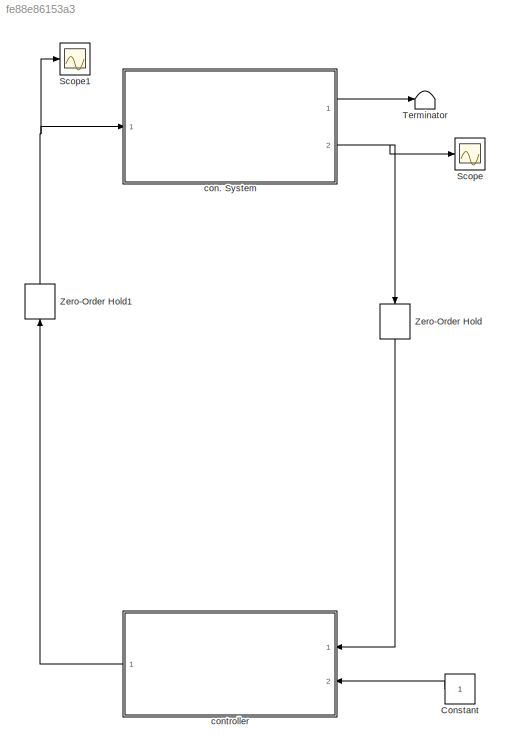
MODEL slx_fe88e86153a3
KIND model
CONFIG AbsTol = auto
CONFIG EnableMultiTasking = off
CONFIG FixedStep = auto
CONFIG MaxStep = auto
CONFIG MinStep = auto
CONFIG RelTol = 1e-3
CONFIG SampleTimeConstraint = Unconstrained
CONFIG Solver = VariableStepAuto
CONFIG SolverName = VariableStepAuto
CONFIG StartTime = 0.0
CONFIG StopTime = 10
BLOCK [Constant] Constant
BLOCK [Scope] Scope
  Floating = off
  NumInputPorts = 1
  Ports = [1]
  ScopeSpecificationString = Simulink.scopes.TimeScopeBlockCfg('CurrentConfiguration', extmgr.ConfigurationSet(extmgr.Configuration('Core','General UI',true),extmgr.Configuration('Core','Source UI',true),extmgr.Configuration('Sources','WiredSimulink',true),extmgr.Configuration('Visuals','Time Domain',true,'SerializedDisplays',{struct('MinYLimReal','-198.37644','MaxYLimReal','167.05929','YLabelReal','','MinYLimMag',' 0.00000',...<+1434ch>
BLOCK [Scope] Scope1
  Floating = off
  NumInputPorts = 1
  Ports = [1]
  ScopeSpecificationString = Simulink.scopes.TimeScopeBlockCfg('CurrentConfiguration', extmgr.ConfigurationSet(extmgr.Configuration('Core','General UI',true),extmgr.Configuration('Core','Source UI',true),extmgr.Configuration('Sources','WiredSimulink',true,'DataLoggingVariableName','ScopeData1'),extmgr.Configuration('Visuals','Time Domain',true,'SerializedDisplays',{struct('MinYLimReal','-3268.45384','MaxYLimReal','5292.09877'...<+1427ch>
BLOCK [Terminator] Terminator
BLOCK [ZeroOrderHold] Zero-Order Hold
  NameLocation = left
  SampleTime = Ts
BLOCK [ZeroOrderHold] Zero-Order Hold1
  NameLocation = right
  SampleTime = Ts
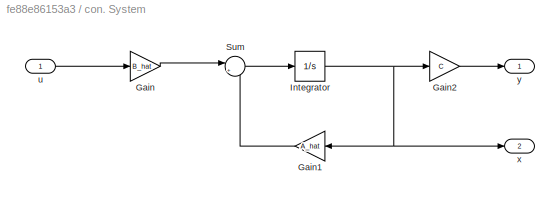
BLOCK [SubSystem] con. System
  Ports = [1, 2]
  RequestExecContextInheritance = off
BLOCK [Gain] con. System/Gain
  Gain = B_hat
  Multiplication = Matrix(K*u)
BLOCK [Gain] con. System/Gain1
  Gain = A_hat
  Multiplication = Matrix(K*u)
BLOCK [Gain] con. System/Gain2
  Gain = C
  Multiplication = Matrix(K*u)
BLOCK [Integrator] con. System/Integrator
  InitialCondition = x0
  Ports = [1, 1]
BLOCK [Sum] con. System/Sum
  Inputs = |++
  Ports = [2, 1]
BLOCK [Inport] con. System/u
BLOCK [Outport] con. System/x
  Port = 2
BLOCK [Outport] con. System/y
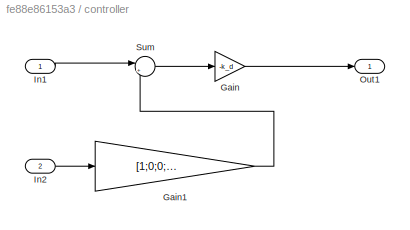
BLOCK [SubSystem] controller
  Ports = [2, 1]
  RequestExecContextInheritance = off
BLOCK [Gain] controller/Gain
  Gain = -k_d
  Multiplication = Matrix(K*u)
BLOCK [Gain] controller/Gain1
  Gain = [1;0;0;0]
  Multiplication = Matrix(K*u)
BLOCK [Inport] controller/In1
BLOCK [Inport] controller/In2
  Port = 2
BLOCK [Outport] controller/Out1
BLOCK [Sum] controller/Sum
  Inputs = |+-
  Ports = [2, 1]
LINE Constant:1 -> controller:2
NET Zero-Order Hold1:1 -> Scope1:1, con. System:1
LINE Zero-Order Hold:1 -> controller:1
LINE con. System/Gain1:1 -> con. System/Sum:2
LINE con. System/Gain2:1 -> con. System/y:1
LINE con. System/Gain:1 -> con. System/Sum:1
NET con. System/Integrator:1 -> con. System/Gain1:1, con. System/Gain2:1, con. System/x:1
LINE con. System/Sum:1 -> con. System/Integrator:1
LINE con. System/u:1 -> con. System/Gain:1
LINE con. System:1 -> Terminator:1
NET con. System:2 -> Scope:1, Zero-Order Hold:1
LINE controller/Gain1:1 -> controller/Sum:2
LINE controller/Gain:1 -> controller/Out1:1
LINE controller/In1:1 -> controller/Sum:1
LINE controller/In2:1 -> controller/Gain1:1
LINE controller/Sum:1 -> controller/Gain:1
LINE controller:1 -> Zero-Order Hold1:1
note: NET lines group one-source signal fan-out (src -> all destinations, sorted); 1:1 wires keep LINE
